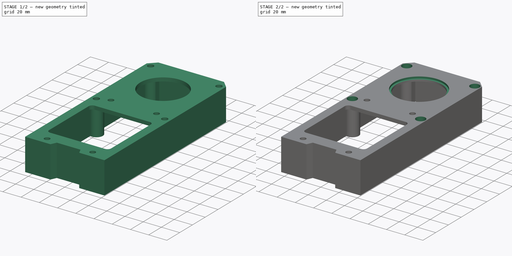
[diagram: build sequence overview — one tinted view per stage of 2, left to right]
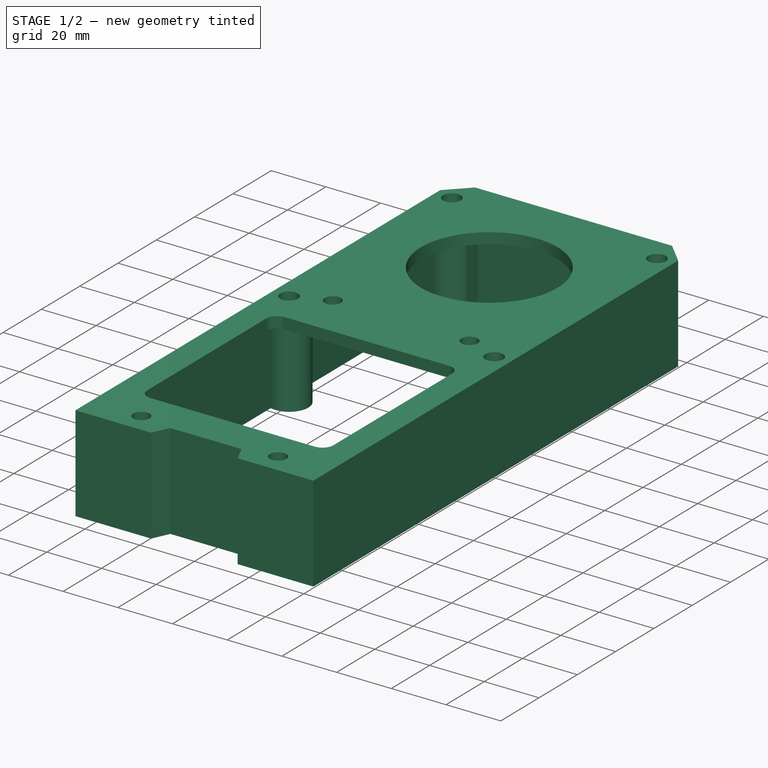
[diagram: stage 1 of 2 — iso view after this stage's code; geometry added in this stage tinted green]
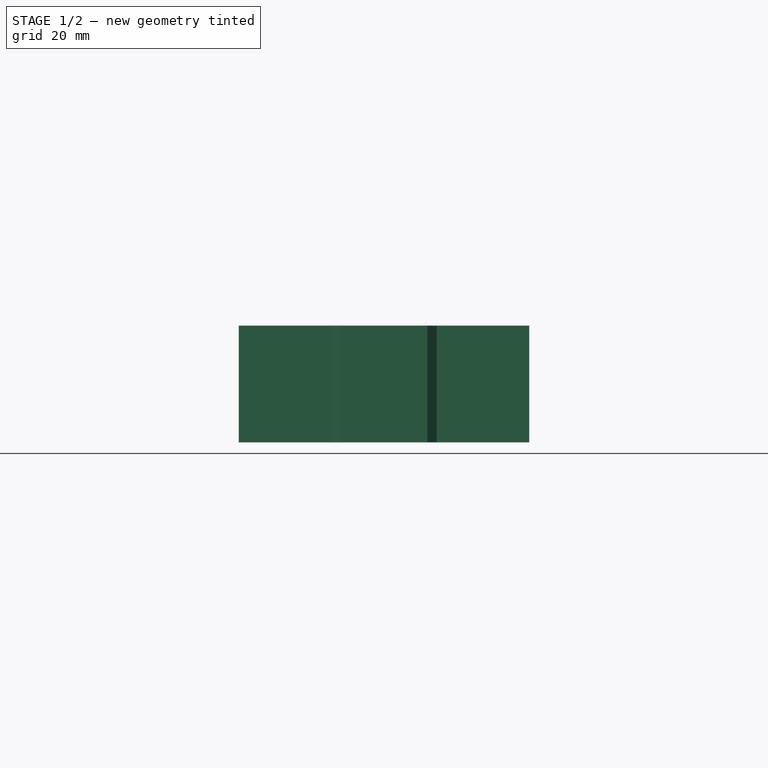
[diagram: stage 1 of 2 — front view after this stage's code; geometry added in this stage tinted green]
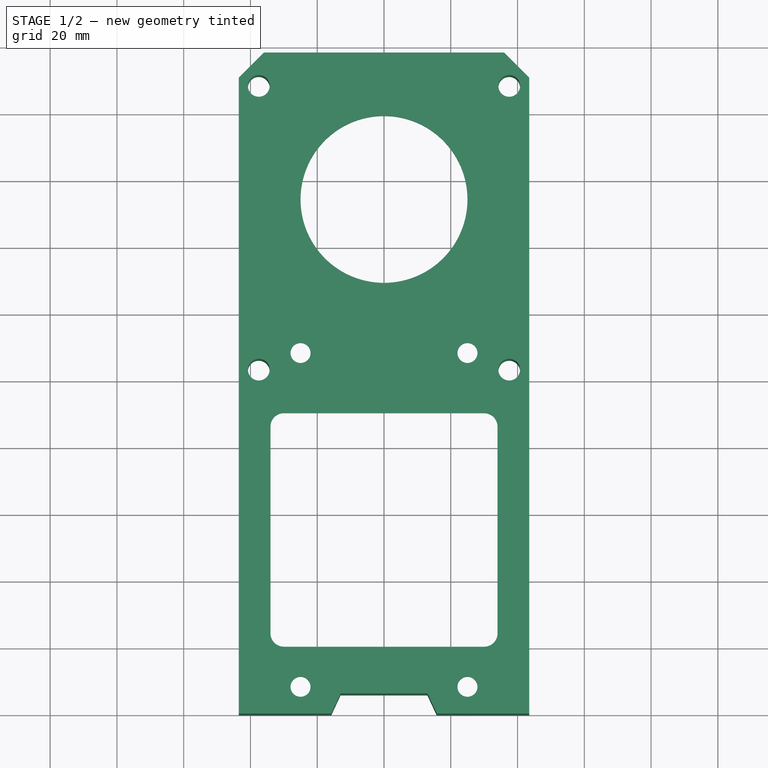
[diagram: stage 1 of 2 — top view after this stage's code; geometry added in this stage tinted green]
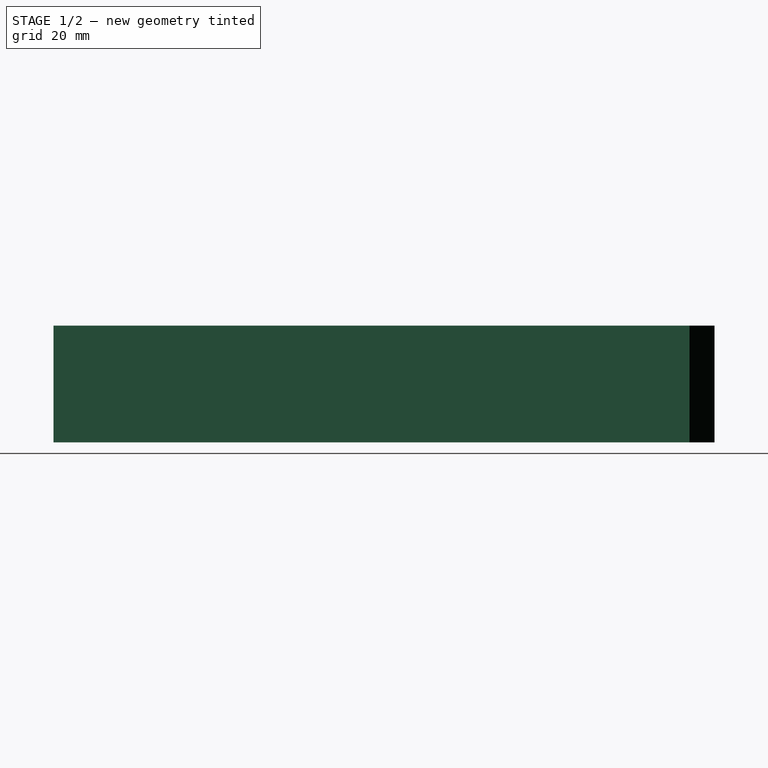
[diagram: stage 1 of 2 — right view after this stage's code; geometry added in this stage tinted green]
FCSTD DOCUMENT  (FreeCAD 0.16R5617 (Git))
Label: Upper-cover-3
License: CreativeCommons Attribution-ShareAlike
LicenseURL: http://creativecommons.org/licenses/by-sa/4.0/
objects: Sketcher::SketchObject×4, PartDesign::Pocket×3, PartDesign::Pad×1
note: 12 computed .brp shape members not serialized (recipe doc carries the construction recipe); baked Part::Feature solids carry a one-line shape summary decoded from their .brp

FEATURE [Sketcher::SketchObject] Sketch
  sketch-geometry (27):
    g0: LineSegment StartX=-43.5 StartY=190.5 StartZ=0 EndX=-43.5 EndY=0 EndZ=0
    g1: LineSegment StartX=-43.5 StartY=0 StartZ=0 EndX=-15.7978 EndY=0 EndZ=0
    g2: LineSegment StartX=-13 StartY=6 StartZ=0 EndX=13 EndY=6 EndZ=0
    g3: LineSegment StartX=15.7978 StartY=0 StartZ=0 EndX=43.5 EndY=0 EndZ=0
    g4: LineSegment StartX=43.5 StartY=0 StartZ=0 EndX=43.5 EndY=190.5 EndZ=0
    g5: LineSegment StartX=43.5 StartY=190.5 StartZ=0 EndX=36 EndY=198 EndZ=0
    g6: LineSegment StartX=36 StartY=198 StartZ=0 EndX=-36 EndY=198 EndZ=0
    g7: LineSegment StartX=-36 StartY=198 StartZ=0 EndX=-43.5 EndY=190.5 EndZ=0
    g8: LineSegment StartX=-15.7978 StartY=0 StartZ=0 EndX=-13 EndY=6 EndZ=0
    g9: Circle CenterX=-37.5 CenterY=188 CenterZ=0 NormalX=0 NormalY=0 NormalZ=1 Radius=3.25
    g10: Circle CenterX=37.5 CenterY=188 CenterZ=0 NormalX=0 NormalY=0 NormalZ=1 Radius=3.25
    g11: Circle CenterX=-25 CenterY=108 CenterZ=0 NormalX=0 NormalY=0 NormalZ=1 Radius=3
    g12: Circle CenterX=25 CenterY=108 CenterZ=0 NormalX=0 NormalY=0 NormalZ=1 Radius=3
    g13: Circle CenterX=37.5 CenterY=103 CenterZ=0 NormalX=0 NormalY=0 NormalZ=1 Radius=3.25
    g14: Circle CenterX=-37.5 CenterY=103 CenterZ=0 NormalX=0 NormalY=0 NormalZ=1 Radius=3.25
    g15: Circle CenterX=-25 CenterY=8 CenterZ=0 NormalX=0 NormalY=0 NormalZ=1 Radius=3
    g16: Circle CenterX=25 CenterY=8 CenterZ=0 NormalX=0 NormalY=0 NormalZ=1 Radius=3
    g17: Circle CenterX=0 CenterY=154 CenterZ=0 NormalX=0 NormalY=0 NormalZ=1 Radius=25
    g18: LineSegment StartX=13 StartY=6 StartZ=0 EndX=15.7978 EndY=0 EndZ=0
    g19: ArcOfCircle CenterX=-30 CenterY=86 CenterZ=0 NormalX=0 NormalY=0 NormalZ=1 Radius=4 StartAngle=1.5708 EndAngle=3.1416
    g20: ArcOfCircle CenterX=30 CenterY=86 CenterZ=0 NormalX=0 NormalY=0 NormalZ=1 Radius=4 StartAngle=6.28318 EndAngle=7.85398
    g21: ArcOfCircle CenterX=30 CenterY=24 CenterZ=0 NormalX=0 NormalY=0 NormalZ=1 Radius=4 StartAngle=4.71239 EndAngle=6.28319
    g22: ArcOfCircle CenterX=-30 CenterY=24 CenterZ=0 NormalX=0 NormalY=0 NormalZ=1 Radius=4 StartAngle=3.14159 EndAngle=4.71239
    g23: LineSegment StartX=-30 StartY=90 StartZ=0 EndX=30 EndY=90 EndZ=0
    g24: LineSegment StartX=34 StartY=86 StartZ=0 EndX=34 EndY=24 EndZ=0
    g25: LineSegment StartX=-30 StartY=20 StartZ=0 EndX=30 EndY=20 EndZ=0
    g26: LineSegment StartX=-34 StartY=24 StartZ=0 EndX=-34 EndY=86 EndZ=0
  constraints (77):
    c: Coincident(g0,g1)
    c: Coincident(g3,g4)
    c: Coincident(g4,g5)
    c: Coincident(g5,g6)
    c: Coincident(g6,g7)
    c: Vertical(g0)
    c: Vertical(g4)
    c: Horizontal(g1)
    c: Horizontal(g3)
    c: Symmetric(g2,g2,g-2)
    c: Symmetric(g0,g3,g-2)
    c: Coincident(g0,g7)
    c: Angle(g7,g6) = 2.35619
    c: Angle(g6,g5) = 2.35619
    c: DistanceX(g0,g3) = 87
    c: DistanceY(g3,g5) = 198
    c: DistanceX(g6,g5) = 72
    c: DistanceY(g-1,g2) = 6
    c: PointOnObject(g3,g-1)
    c: Symmetric(g6,g5,g-2)
    c: Symmetric(g9,g10,g-2)
    c: Symmetric(g12,g11,g-2)
    c: Symmetric(g14,g13,g-2)
    c: Symmetric(g15,g16,g-2)
    c: DistanceX(g9,g10) = 75
    c: DistanceX(g14,g13) = 75
    c: Equal(g9,g10)
    c: Equal(g10,g13)
    c: Equal(g13,g14)
    c: Radius(g13) = 3.25
    c: Equal(g11,g12)
    c: Equal(g12,g15)
    c: Equal(g15,g16)
    c: Radius(g12) = 3
    c: DistanceX(g11,g12) = 50
    c: DistanceX(g15,g16) = 50
    c: DistanceY(g13,g10) = 85
    c: DistanceY(g-1,g13) = 103
    c: DistanceY(g15,g11) = 100
    c: DistanceY(g-1,g15) = 8
    c: PointOnObject(g17,g-2)
    c: Radius(g17) = 25
    c: DistanceY(g17,g0) = -154
    c: Coincident(g1,g8)
    c: Coincident(g8,g2)
    c: Coincident(g3,g18)
    c: Coincident(g2,g18)
    c: Angle(g8,g1) = 2.00713
    c: Angle(g3,g18) = 2.00713
    c: DistanceX(g2,g2) = 26
    c: Equal(g22,g19)
    c: Equal(g19,g20)
    c: Equal(g20,g21)
    c: Vertical(g26)
    c: Vertical(g24)
    c: Horizontal(g23)
    c: Horizontal(g25)
    c: Coincident(g22,g25)
    c: Coincident(g22,g26)
    c: Coincident(g26,g19)
    c: Coincident(g19,g23)
    c: Coincident(g23,g20)
    c: Coincident(g20,g24)
    c: Coincident(g21,g24)
    c: Coincident(g25,g21)
    c: Radius(g20) = 4
    c: Tangent(g22,g25)
    c: Tangent(g21,g25)
    c: Tangent(g19,g23)
    c: Tangent(g23,g20)
    c: DistanceY(g21,g20) = 70
    c: Angle(g21) = 1.5708
    c: Symmetric(g22,g21,g-2)
    c: DistanceY(g-1,g21) = 20
    c: DistanceX(g19,g20) = 68
    c: Equal(g26,g24)
    c: Tangent(g26,g19)
FEATURE [PartDesign::Pad] Pad
  Length = 35
  Length2 = 100
  Sketch = -> Sketch
  Type = 0
FEATURE [Sketcher::SketchObject] Sketch002  label="Sketch001"
  Placement = pos=(0,0,0) rot=(1,0,0;3.14159rad)
  Support = -> Pad [Face28]
  sketch-geometry (16):
    g0: LineSegment StartX=-39.5 StartY=-96.2918 StartZ=0 EndX=-39.5 EndY=-4 EndZ=0
    g1: LineSegment StartX=-39.5 StartY=-4 StartZ=0 EndX=-18.6077 EndY=-4 EndZ=0
    g2: LineSegment StartX=-18.6077 StartY=-4 StartZ=0 EndX=-17 EndY=-10 EndZ=0
    g3: LineSegment StartX=-17 StartY=-10 StartZ=0 EndX=17 EndY=-10 EndZ=0
    g4: LineSegment StartX=17 StartY=-10 StartZ=0 EndX=18.6077 EndY=-4 EndZ=0
    g5: LineSegment StartX=18.6077 StartY=-4 StartZ=0 EndX=39.5 EndY=-4 EndZ=0
    g6: LineSegment StartX=39.5 StartY=-4 StartZ=0 EndX=39.5 EndY=-96.2918 EndZ=0
    g7: ArcOfCircle CenterX=-37.5 CenterY=-103 CenterZ=0 NormalX=0 NormalY=0 NormalZ=1 Radius=7 StartAngle=4.42264 EndAngle=8.14373
    g8: ArcOfCircle CenterX=37.5 CenterY=-103 CenterZ=0 NormalX=0 NormalY=0 NormalZ=1 Radius=7 StartAngle=1.28104 EndAngle=5.00214
    g9: ArcOfCircle CenterX=-37.5 CenterY=-188 CenterZ=0 NormalX=0 NormalY=0 NormalZ=1 Radius=7 StartAngle=0.289752 EndAngle=1.86055
    g10: LineSegment StartX=-39.5 StartY=-109.708 StartZ=0 EndX=-39.5 EndY=-181.292 EndZ=0
    g11: LineSegment StartX=39.5 StartY=-109.708 StartZ=0 EndX=39.5 EndY=-181.292 EndZ=0
    g12: LineSegment StartX=-30.7918 StartY=-186 StartZ=0 EndX=-30.7918 EndY=-192 EndZ=0
    g13: LineSegment StartX=-30.7918 StartY=-192 StartZ=0 EndX=30.7918 EndY=-192 EndZ=0
    g14: LineSegment StartX=30.7918 StartY=-192 StartZ=0 EndX=30.7918 EndY=-186 EndZ=0
    g15: ArcOfCircle CenterX=37.5 CenterY=-188 CenterZ=0 NormalX=0 NormalY=0 NormalZ=1 Radius=7 StartAngle=1.28104 EndAngle=2.85184
  constraints (51):
    c: Vertical(g0)
    c: Coincident(g0,g1)
    c: Horizontal(g1)
    c: Coincident(g1,g2)
    c: Coincident(g2,g3)
    c: Coincident(g3,g4)
    c: Coincident(g4,g5)
    c: Horizontal(g5)
    c: Coincident(g5,g6)
    c: Horizontal(g3)
    c: Coincident(g0,g7)
    c: Coincident(g8,g6)
    c: Vertical(g6)
    c: DistanceX(g7,g8) = 75
    c: Equal(g8,g7)
    c: Radius(g8) = 7
    c: DistanceX(g0,g5) = 79
    c: Symmetric(g0,g5,g-2)
    c: Symmetric(g2,g3,g-2)
    c: DistanceY(g-1,g5) = -4
    c: Angle(g4,g5) = 1.8326
    c: Angle(g1,g2) = 1.8326
    c: DistanceX(g2,g3) = 34
    c: PointOnObject(g10,g9)
    c: Coincident(g9,g10)
    c: Vertical(g10)
    c: Coincident(g10,g7)
    c: Vertical(g11)
    c: Coincident(g11,g8)
    c: Symmetric(g7,g8,g-2)
    c: Radius(g9) = 7
    c: Coincident(g12,g13)
    c: Horizontal(g13)
    c: Coincident(g13,g14)
    c: Vertical(g14)
    c: Vertical(g12)
    c: Symmetric(g12,g13,g-2)
    c: Coincident(g9,g12)
    c: DistanceY(g-1,g13) = -192
    c: DistanceY(g-1,g8) = -103
    c: DistanceY(g-1,g2) = -10
    c: Symmetric(g7,g8,g-2)
    c: DistanceX(g7,g8) = 79
    c: Angle(g9) = 1.5708
    c: Coincident(g15,g11)
    c: Coincident(g14,g15)
    c: Symmetric(g9,g15,g-2)
    c: Equal(g9,g15)
    c: Angle(g15) = 1.5708
    c: DistanceX(g9,g15) = 75
    c: DistanceY(g8,g15) = -85
FEATURE [PartDesign::Pocket] Pocket
  Length = 31
  Sketch = -> Sketch002
  Type = 0
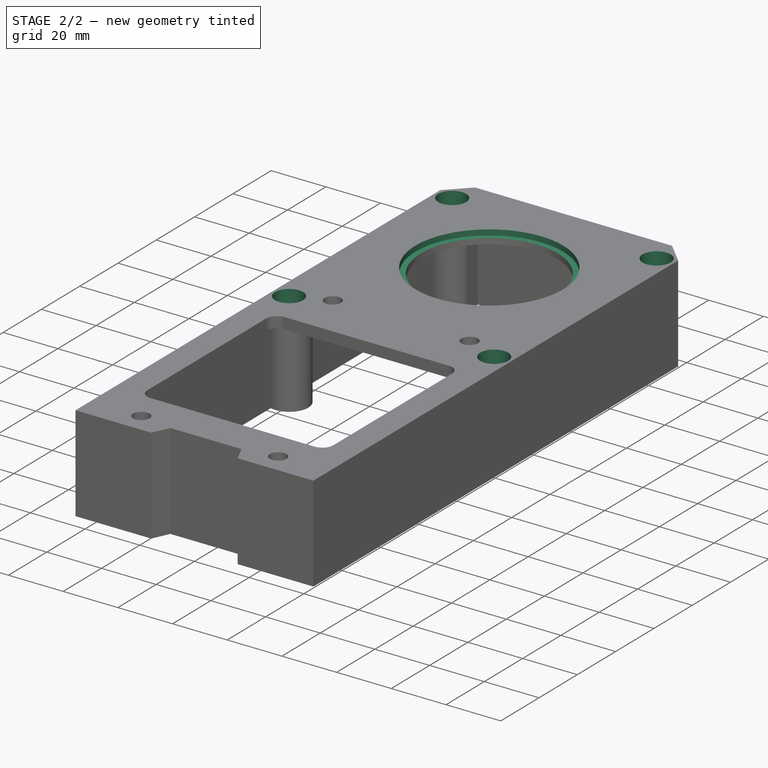
[diagram: stage 2 of 2 — iso view after this stage's code; geometry added in this stage tinted green]
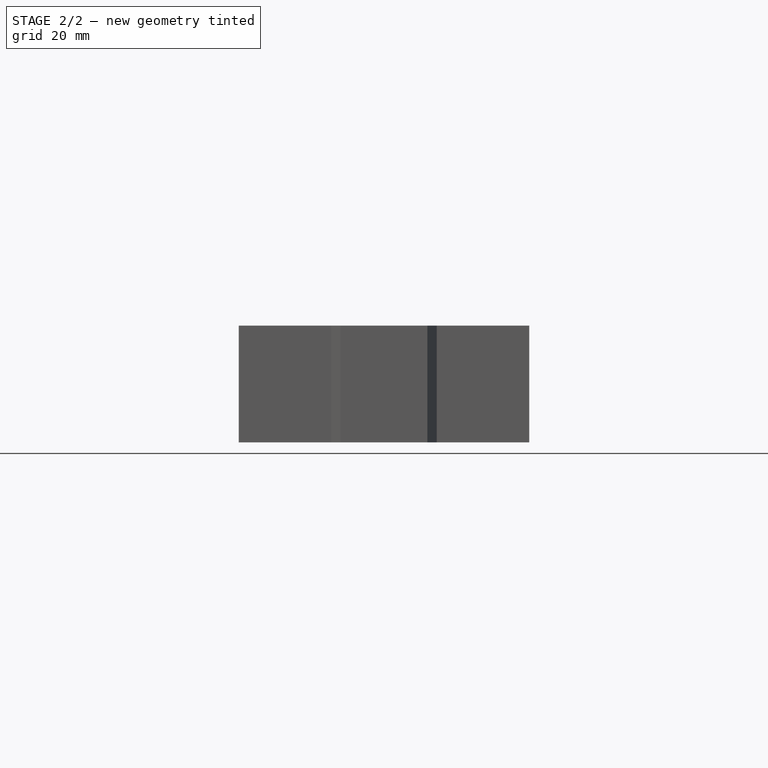
[diagram: stage 2 of 2 — front view after this stage's code; geometry added in this stage tinted green]
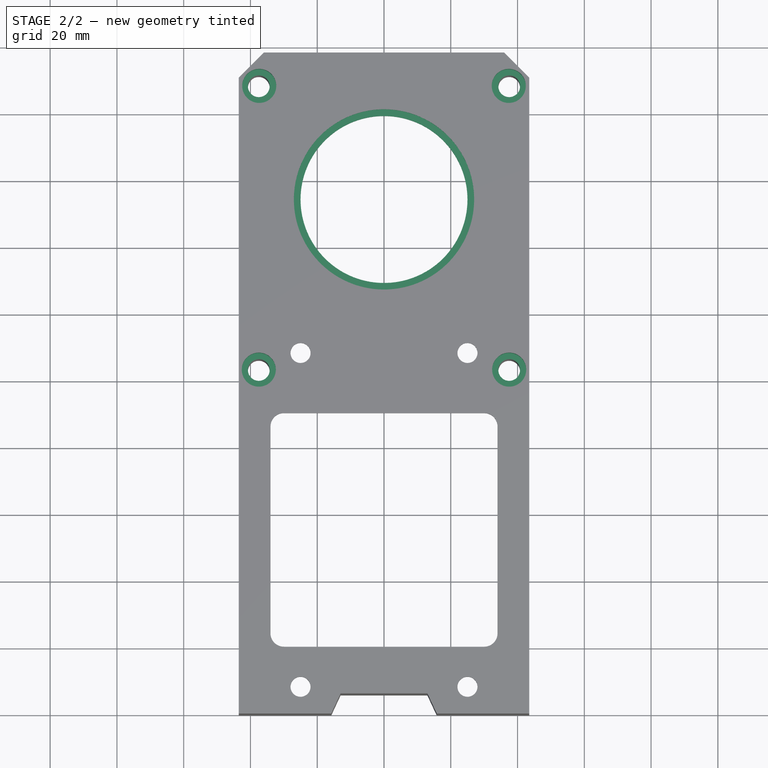
[diagram: stage 2 of 2 — top view after this stage's code; geometry added in this stage tinted green]
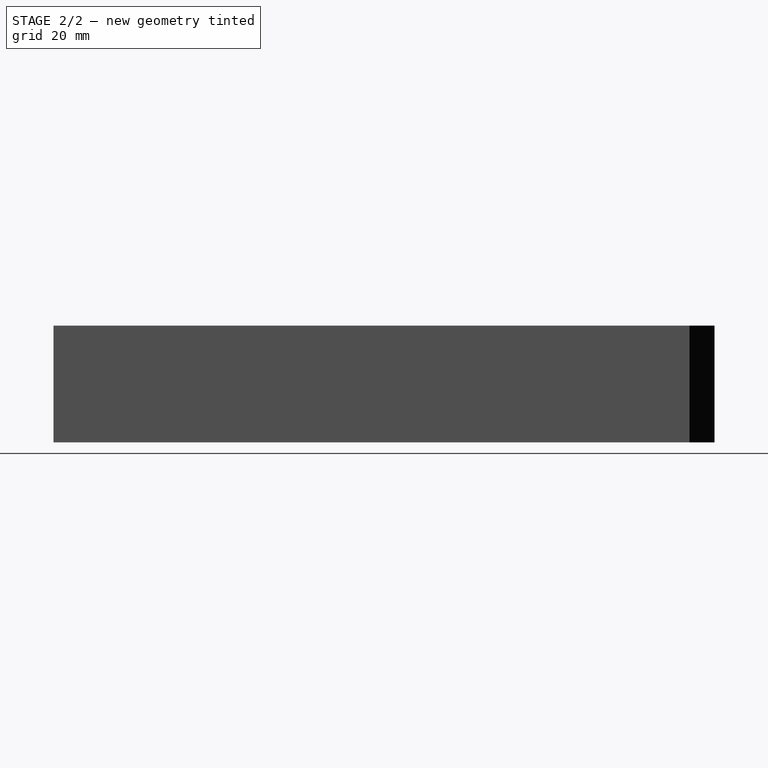
[diagram: stage 2 of 2 — right view after this stage's code; geometry added in this stage tinted green]
FEATURE [Sketcher::SketchObject] Sketch003  label="Sketch002"
  Placement = pos=(0,0,35) rot=(0,0,1;0rad)
  Support = -> Pocket [Face5]
  sketch-geometry (4):
    g0: Circle CenterX=-37.3713 CenterY=188 CenterZ=0 NormalX=0 NormalY=0 NormalZ=1 Radius=5.1
    g1: Circle CenterX=37.3713 CenterY=188 CenterZ=0 NormalX=0 NormalY=0 NormalZ=1 Radius=5.1
    g2: Circle CenterX=-37.5 CenterY=103 CenterZ=0 NormalX=0 NormalY=0 NormalZ=1 Radius=5.1
    g3: Circle CenterX=37.5 CenterY=103 CenterZ=0 NormalX=0 NormalY=0 NormalZ=1 Radius=5.1
  constraints (9):
    c: Symmetric(g2,g3,g-2)
    c: Symmetric(g0,g1,g-2)
    c: DistanceY(g3,g1) = 85
    c: DistanceX(g2,g3) = 75
    c: DistanceY(g-1,g3) = 103
    c: Equal(g3,g1)
    c: Equal(g1,g0)
    c: Equal(g0,g2)
    c: Radius(g0) = 5.1
FEATURE [PartDesign::Pocket] Pocket001
  Length = 6
  Sketch = -> Sketch003
  Type = 0
FEATURE [Sketcher::SketchObject] Sketch004  label="Sketch003"
  Placement = pos=(0,0,35) rot=(0,0,1;0rad)
  Support = -> Pocket001 [Face5]
  sketch-geometry (1):
    g0: Circle CenterX=0 CenterY=154 CenterZ=0 NormalX=0 NormalY=0 NormalZ=1 Radius=27
  constraints (3):
    c: PointOnObject(g0,g-2)
    c: Radius(g0) = 27
    c: DistanceY(g-1,g0) = 154
FEATURE [PartDesign::Pocket] Pocket002
  Length = 2
  Sketch = -> Sketch004
  Type = 0
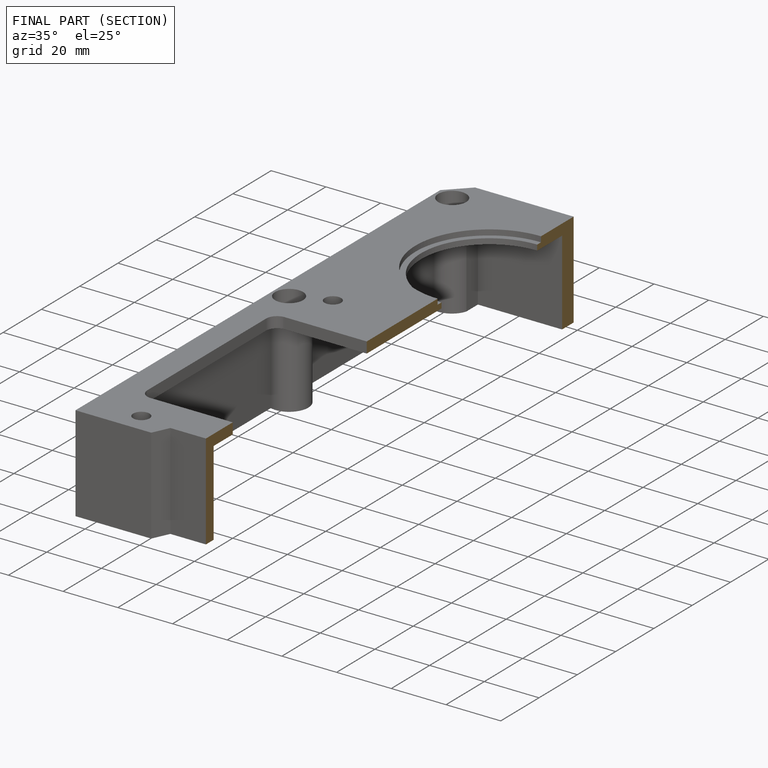
[diagram: finished part — half-section view (interior)]
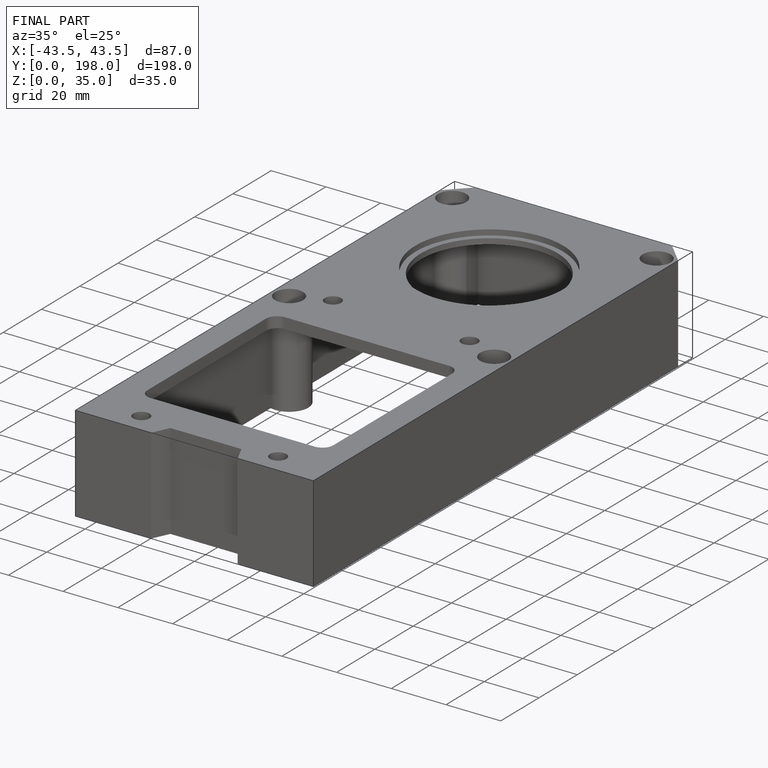
[diagram: finished part — iso view with bounding-box wireframe]
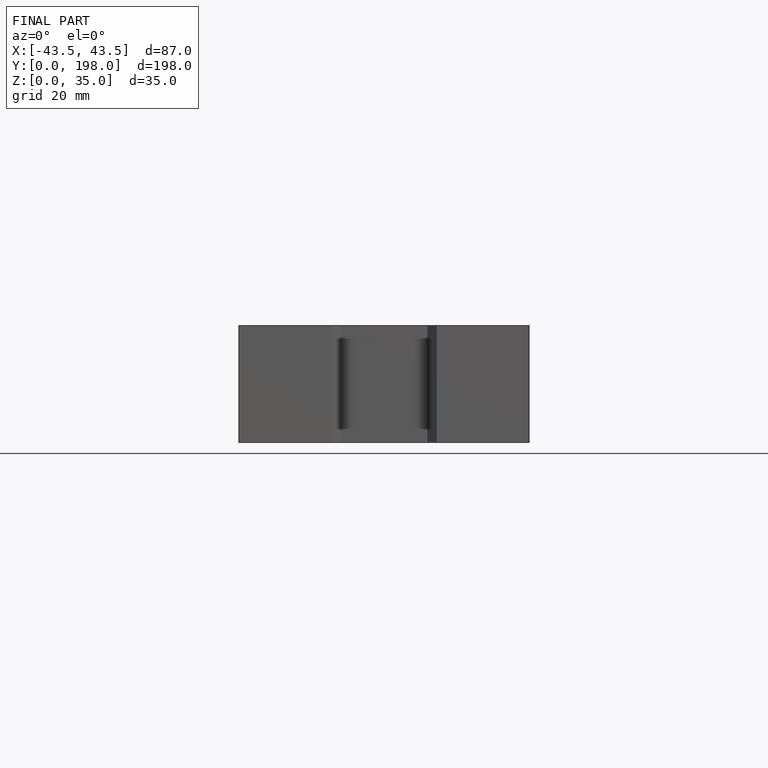
[diagram: finished part — front view with bounding-box wireframe]
